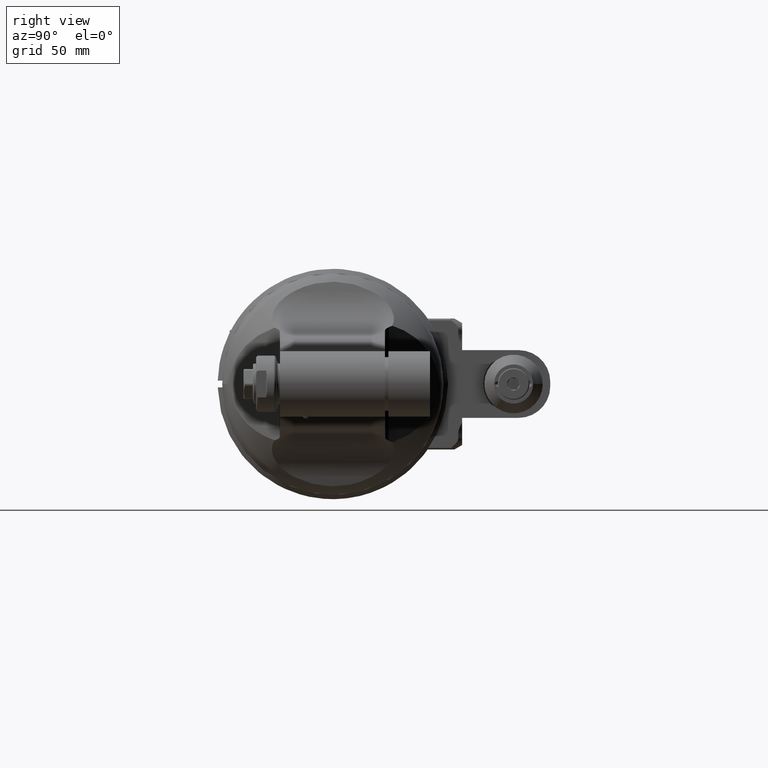
[diagram: clean part render]
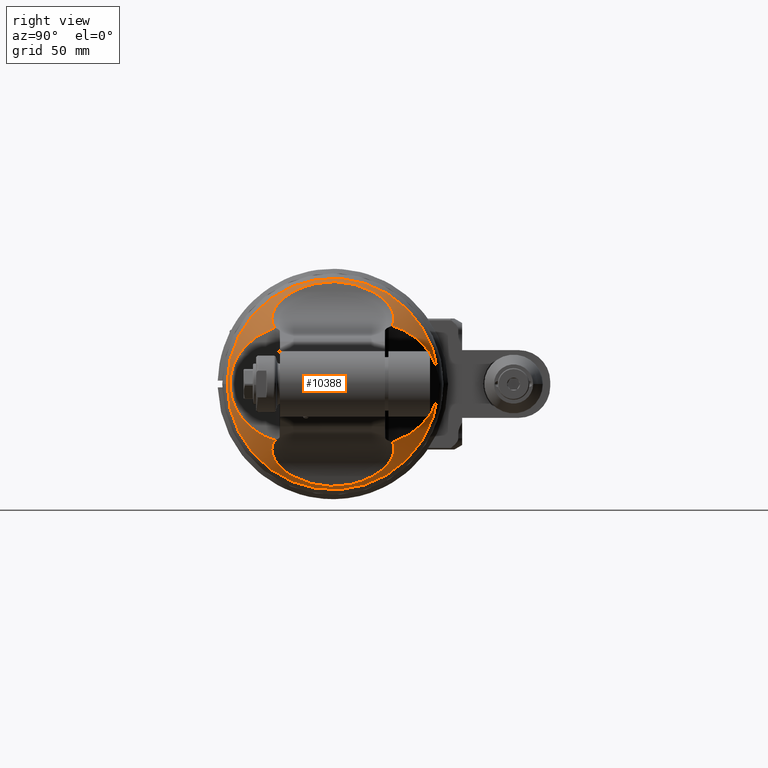
[diagram: same view with one face highlighted and labeled with its STEP entity id]
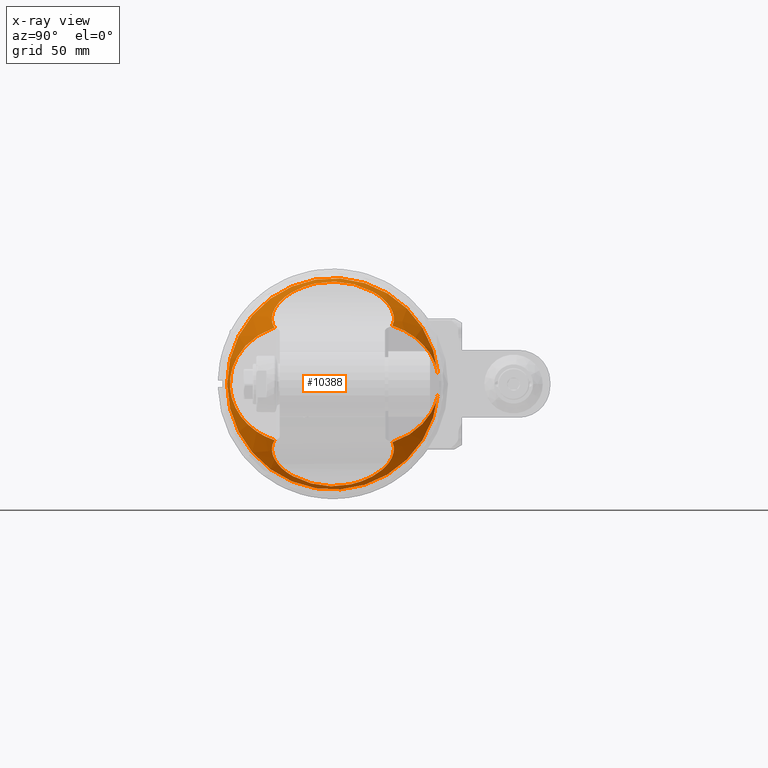
[diagram: x-ray of the same camera — body ghosted, the highlighted face saturated]
A machine part, right view. The second image highlights one B-rep face of the part: STEP entity #10388.
The next image is the same camera in x-ray: the body ghosted, the highlighted face saturated — about 0% of this face is hidden behind the body in this view.
In plain terms, the highlighted conical surface has half-angle 35 deg.
Its self-contained STEP definition (entity closure, byte-faithful):
#16=ELLIPSE('',#11337,38.5129525458926,27.495912521784);
#17=ELLIPSE('',#11338,38.5129525458926,27.495912521784);
#18=ELLIPSE('',#11342,39.5168570021427,37.4925114331019);
#19=ELLIPSE('',#11343,37.3310363154756,26.6520960099003);
#20=ELLIPSE('',#11344,39.5168570021427,37.4925114331019);
#673=CONICAL_SURFACE('',#11339,41.34548221376,0.610865238198015);
#1067=FACE_OUTER_BOUND('',#1672,.T.);
#1672=EDGE_LOOP('',(#8582,#8583,#8584,#8585,#8586,#8587,#8588,#8589,#8590,
#8591,#8592));
#2198=CIRCLE('',#11340,46.82982453147);
#2199=CIRCLE('',#11341,46.82982453147);
#2469=B_SPLINE_CURVE_WITH_KNOTS('',3,(#58747,#58748,#58749,#58750,#58751,
#58752,#58753,#58754,#58755,#58756,#58757,#58758,#58759,#58760,#58761,#58762),
 .UNSPECIFIED.,.F.,.F.,(4,2,2,2,2,2,2,4),(-11.3679576426964,-11.1087200709386,
-10.8090962085518,-10.509472346165,-10.1518591663311,-9.79424598649715,
-9.20006866240719,-9.17254142138074),.UNSPECIFIED.);
#2470=B_SPLINE_CURVE_WITH_KNOTS('',3,(#58766,#58767,#58768,#58769,#58770,
#58771,#58772,#58773,#58774,#58775,#58776,#58777,#58778,#58779,#58780,#58781),
 .UNSPECIFIED.,.F.,.F.,(4,2,2,2,2,2,2,4),(-5.66253195905696,-5.63500471786744,
-5.04082739377748,-4.68321421394354,-4.3256010341096,-4.02597717172281,
-3.72635330933601,-3.29785451749121),.UNSPECIFIED.);
#2473=B_SPLINE_CURVE_WITH_KNOTS('',3,(#58869,#58870,#58871,#58872,#58873,
#58874,#58875,#58876,#58877,#58878,#58879,#58880,#58881,#58882,#58883,#58884),
 .UNSPECIFIED.,.F.,.F.,(4,2,2,2,2,2,2,4),(-4.1196821726461,-3.6911833808013,
-3.39155951841451,-3.09193565602771,-2.73432247619377,-2.37670929635983,
-1.78253197226987,-1.7550047310812),.UNSPECIFIED.);
#2474=B_SPLINE_CURVE_WITH_KNOTS('',3,(#58888,#58889,#58890,#58891,#58892,
#58893,#58894,#58895,#58896,#58897,#58898,#58899,#58900,#58901,#58902,#58903),
 .UNSPECIFIED.,.F.,.F.,(4,2,2,2,2,2,2,4),(1.75500473105324,1.78253197226987,
2.37670929635983,2.73432247619377,3.09193565602771,3.39155951841451,3.6911833808013,
3.95042095255802),.UNSPECIFIED.);
#4733=VERTEX_POINT('',#58744);
#4734=VERTEX_POINT('',#58746);
#4735=VERTEX_POINT('',#58763);
#4736=VERTEX_POINT('',#58765);
#4760=VERTEX_POINT('',#58866);
#4761=VERTEX_POINT('',#58868);
#4762=VERTEX_POINT('',#58885);
#4763=VERTEX_POINT('',#58887);
#4764=VERTEX_POINT('',#58906);
#4765=VERTEX_POINT('',#58908);
#4766=VERTEX_POINT('',#58921);
#6120=EDGE_CURVE('',#4733,#4734,#2469,.T.);
#6122=EDGE_CURVE('',#4735,#4736,#2470,.T.);
#6159=EDGE_CURVE('',#4760,#4761,#2473,.T.);
#6161=EDGE_CURVE('',#4762,#4763,#2474,.T.);
#6163=EDGE_CURVE('',#4764,#4733,#16,.T.);
#6164=EDGE_CURVE('',#4763,#4765,#17,.T.);
#6166=EDGE_CURVE('',#4766,#4764,#2198,.T.);
#6167=EDGE_CURVE('',#4765,#4766,#2199,.T.);
#6168=EDGE_CURVE('',#4761,#4762,#18,.T.);
#6169=EDGE_CURVE('',#4736,#4760,#19,.T.);
#6170=EDGE_CURVE('',#4734,#4735,#20,.T.);
#8582=ORIENTED_EDGE('',*,*,#6163,.F.);
#8583=ORIENTED_EDGE('',*,*,#6166,.F.);
#8584=ORIENTED_EDGE('',*,*,#6167,.F.);
#8585=ORIENTED_EDGE('',*,*,#6164,.F.);
#8586=ORIENTED_EDGE('',*,*,#6161,.F.);
#8587=ORIENTED_EDGE('',*,*,#6168,.F.);
#8588=ORIENTED_EDGE('',*,*,#6159,.F.);
#8589=ORIENTED_EDGE('',*,*,#6169,.F.);
#8590=ORIENTED_EDGE('',*,*,#6122,.F.);
#8591=ORIENTED_EDGE('',*,*,#6170,.F.);
#8592=ORIENTED_EDGE('',*,*,#6120,.F.);
#10388=ADVANCED_FACE('',(#1067),#673,.T.);
#11337=AXIS2_PLACEMENT_3D('',#58907,#13408,#13409);
#11338=AXIS2_PLACEMENT_3D('',#58909,#13410,#13411);
#11339=AXIS2_PLACEMENT_3D('',#58920,#13412,#13413);
#11340=AXIS2_PLACEMENT_3D('',#58922,#13414,#13415);
#11341=AXIS2_PLACEMENT_3D('',#58923,#13416,#13417);
#11342=AXIS2_PLACEMENT_3D('',#58924,#13418,#13419);
#11343=AXIS2_PLACEMENT_3D('',#58925,#13420,#13421);
#11344=AXIS2_PLACEMENT_3D('',#58926,#13422,#13423);
#13408=DIRECTION('center_axis',(0.819152044289016,0.573576436351011,0.));
#13409=DIRECTION('ref_axis',(-0.573576436351011,0.819152044289016,4.61236213267087E-16));
#13410=DIRECTION('center_axis',(0.819152044289016,0.573576436351011,0.));
#13411=DIRECTION('ref_axis',(-0.573576436351011,0.819152044289016,4.61236213267087E-16));
#13412=DIRECTION('center_axis',(-1.,0.,0.));
#13413=DIRECTION('ref_axis',(0.,-1.,7.63955905622022E-13));
#13414=DIRECTION('center_axis',(-1.,0.,0.));
#13415=DIRECTION('ref_axis',(0.,0.9958750951069,-0.09073475048637));
#13416=DIRECTION('center_axis',(-1.,0.,0.));
#13417=DIRECTION('ref_axis',(0.,0.9958750951069,-0.09073475048637));
#13418=DIRECTION('center_axis',(0.965925826289076,0.,-0.258819045102493));
#13419=DIRECTION('ref_axis',(-0.258819045102494,-2.84553889323999E-15,-0.965925826289076));
#13420=DIRECTION('center_axis',(0.819152044289016,-0.573576436351011,0.));
#13421=DIRECTION('ref_axis',(-0.573576436351011,-0.819152044289016,-3.568793585829E-16));
#13422=DIRECTION('center_axis',(0.965925826289076,0.,0.258819045102493));
#13423=DIRECTION('ref_axis',(0.258819045102494,-1.92035758627816E-14,-0.965925826289076));
#58744=CARTESIAN_POINT('',(50.32663557925,26.31796038215,25.81853261668));
#58746=CARTESIAN_POINT('',(39.43907326344,17.62419830655,40.85173814823));
#58747=CARTESIAN_POINT('Ctrl Pts',(50.3266355792508,26.3179603821482,25.8185326166821));
#58748=CARTESIAN_POINT('Ctrl Pts',(49.5931269071222,26.5670459568276,26.2980394523377));
#58749=CARTESIAN_POINT('Ctrl Pts',(48.8652262292801,26.7602403925626,26.8275770681717));
#58750=CARTESIAN_POINT('Ctrl Pts',(47.3527718095707,27.0206715689457,28.055709602424));
#58751=CARTESIAN_POINT('Ctrl Pts',(46.5754988807068,27.0631655307251,28.769610398774));
#58752=CARTESIAN_POINT('Ctrl Pts',(45.1408364903172,26.928828024518,30.2539541892921));
#58753=CARTESIAN_POINT('Ctrl Pts',(44.4833891250785,26.7515201873074,31.0242980645363));
#58754=CARTESIAN_POINT('Ctrl Pts',(43.2048615199485,26.1431500897146,32.6960679135348));
#58755=CARTESIAN_POINT('Ctrl Pts',(42.546578790386,25.6262824137681,33.6912935538658));
#58756=CARTESIAN_POINT('Ctrl Pts',(41.4504452654249,24.2857621006101,35.6027586369876));
#58757=CARTESIAN_POINT('Ctrl Pts',(41.0087793176665,23.4640109036862,36.5181412902263));
#58758=CARTESIAN_POINT('Ctrl Pts',(40.1128481386325,21.2432134325854,38.5992416820879));
#58759=CARTESIAN_POINT('Ctrl Pts',(39.7430630256033,19.6305258381362,39.7397040921012));
#58760=CARTESIAN_POINT('Ctrl Pts',(39.4631801555046,17.7882881650128,40.762244558247));
#58761=CARTESIAN_POINT('Ctrl Pts',(39.4510158799108,17.7063995071778,40.8071676968061));
#58762=CARTESIAN_POINT('Ctrl Pts',(39.4390732634466,17.6241983065466,40.8517381482256));
#58763=CARTESIAN_POINT('',(39.43907326322,-17.6241983051,40.85173814904));
#58765=CARTESIAN_POINT('',(51.76423686831,-25.76485296668,24.94381098088));
#58766=CARTESIAN_POINT('Ctrl Pts',(39.4390732632344,-17.6241983050858,40.8517381490176));
#58767=CARTESIAN_POINT('Ctrl Pts',(39.4510158797666,-17.7063995062076,40.8071676973384));
#58768=CARTESIAN_POINT('Ctrl Pts',(39.4631801554312,-17.7882881645296,40.7622445585152));
#58769=CARTESIAN_POINT('Ctrl Pts',(39.7430630256034,-19.6305258381362,39.7397040921012));
#58770=CARTESIAN_POINT('Ctrl Pts',(40.1128481386325,-21.2432134325854,38.5992416820879));
#58771=CARTESIAN_POINT('Ctrl Pts',(41.0087793176665,-23.4640109036862,36.5181412902263));
#58772=CARTESIAN_POINT('Ctrl Pts',(41.4504452654249,-24.2857621006101,35.6027586369876));
#58773=CARTESIAN_POINT('Ctrl Pts',(42.546578790386,-25.6262824137681,33.6912935538658));
#58774=CARTESIAN_POINT('Ctrl Pts',(43.2048615199485,-26.1431500897146,32.6960679135348));
#58775=CARTESIAN_POINT('Ctrl Pts',(44.4833891250785,-26.7515201873074,31.0242980645363));
#58776=CARTESIAN_POINT('Ctrl Pts',(45.1408364903172,-26.928828024518,30.2539541892921));
#58777=CARTESIAN_POINT('Ctrl Pts',(46.5754988807068,-27.0631655307252,28.769610398774));
#58778=CARTESIAN_POINT('Ctrl Pts',(47.3527718095707,-27.0206715689457,28.055709602424));
#58779=CARTESIAN_POINT('Ctrl Pts',(49.3233002074889,-26.6813641345671,26.4556150781762));
#58780=CARTESIAN_POINT('Ctrl Pts',(50.5563175668249,-26.2814142669372,25.6262254767731));
#58781=CARTESIAN_POINT('Ctrl Pts',(51.7642368683103,-25.764852966678,24.943810980882));
#58866=CARTESIAN_POINT('',(51.76423686831,-25.76485296668,-24.94381098088));
#58868=CARTESIAN_POINT('',(39.43907326322,-17.62419830511,-40.85173814904));
#58869=CARTESIAN_POINT('Ctrl Pts',(51.7642368683103,-25.764852966678,-24.943810980882));
#58870=CARTESIAN_POINT('Ctrl Pts',(50.5563175668249,-26.2814142669372,-25.6262254767731));
#58871=CARTESIAN_POINT('Ctrl Pts',(49.3233002074889,-26.6813641345671,-26.4556150781762));
#58872=CARTESIAN_POINT('Ctrl Pts',(47.3527718095707,-27.0206715689457,-28.055709602424));
#58873=CARTESIAN_POINT('Ctrl Pts',(46.5754988807068,-27.0631655307252,-28.769610398774));
#58874=CARTESIAN_POINT('Ctrl Pts',(45.1408364903172,-26.928828024518,-30.2539541892921));
#58875=CARTESIAN_POINT('Ctrl Pts',(44.4833891250785,-26.7515201873074,-31.0242980645363));
#58876=CARTESIAN_POINT('Ctrl Pts',(43.2048615199485,-26.1431500897146,-32.6960679135348));
#58877=CARTESIAN_POINT('Ctrl Pts',(42.546578790386,-25.6262824137681,-33.6912935538658));
#58878=CARTESIAN_POINT('Ctrl Pts',(41.4504452654249,-24.2857621006101,-35.6027586369876));
#58879=CARTESIAN_POINT('Ctrl Pts',(41.0087793176665,-23.4640109036862,-36.5181412902263));
#58880=CARTESIAN_POINT('Ctrl Pts',(40.1128481386325,-21.2432134325854,-38.5992416820879));
#58881=CARTESIAN_POINT('Ctrl Pts',(39.7430630256033,-19.6305258381362,-39.7397040921012));
#58882=CARTESIAN_POINT('Ctrl Pts',(39.4631801554316,-17.7882881645321,-40.7622445585138));
#58883=CARTESIAN_POINT('Ctrl Pts',(39.4510158797674,-17.7063995062127,-40.8071676973356));
#58884=CARTESIAN_POINT('Ctrl Pts',(39.4390732632355,-17.6241983050934,-40.8517381490135));
#58885=CARTESIAN_POINT('',(39.43907326313,17.62419830494,-40.85173814931));
#58887=CARTESIAN_POINT('',(50.32663557924,26.31796038216,-25.81853261668));
#58888=CARTESIAN_POINT('Ctrl Pts',(39.4390732631991,17.6241983048429,-40.8517381491494));
#58889=CARTESIAN_POINT('Ctrl Pts',(39.4510158797427,17.7063995060463,-40.8071676974269));
#58890=CARTESIAN_POINT('Ctrl Pts',(39.463180155419,17.7882881644492,-40.7622445585598));
#58891=CARTESIAN_POINT('Ctrl Pts',(39.7430630256033,19.6305258381362,-39.7397040921012));
#58892=CARTESIAN_POINT('Ctrl Pts',(40.1128481386325,21.2432134325854,-38.5992416820879));
#58893=CARTESIAN_POINT('Ctrl Pts',(41.0087793176665,23.4640109036862,-36.5181412902263));
#58894=CARTESIAN_POINT('Ctrl Pts',(41.4504452654249,24.2857621006101,-35.6027586369876));
#58895=CARTESIAN_POINT('Ctrl Pts',(42.546578790386,25.6262824137681,-33.6912935538658));
#58896=CARTESIAN_POINT('Ctrl Pts',(43.2048615199485,26.1431500897146,-32.6960679135348));
#58897=CARTESIAN_POINT('Ctrl Pts',(44.4833891250785,26.7515201873074,-31.0242980645363));
#58898=CARTESIAN_POINT('Ctrl Pts',(45.1408364903172,26.928828024518,-30.2539541892921));
#58899=CARTESIAN_POINT('Ctrl Pts',(46.5754988807068,27.0631655307251,-28.769610398774));
#58900=CARTESIAN_POINT('Ctrl Pts',(47.3527718095707,27.0206715689457,-28.055709602424));
#58901=CARTESIAN_POINT('Ctrl Pts',(48.8652262292773,26.7602403925631,-26.827577068174));
#58902=CARTESIAN_POINT('Ctrl Pts',(49.5931269071164,26.5670459568292,-26.2980394523418));
#58903=CARTESIAN_POINT('Ctrl Pts',(50.3266355792421,26.3179603821512,-25.8185326166878));
#58906=CARTESIAN_POINT('',(36.09933176966,46.63665595912,4.249092444111));
#58907=CARTESIAN_POINT('Origin',(57.9240906989478,15.4676699966277,0.));
#58908=CARTESIAN_POINT('',(36.09933176966,46.63665595912,-4.249092444183));
#58909=CARTESIAN_POINT('Origin',(57.9240906989478,15.4676699966277,0.));
#58920=CARTESIAN_POINT('Origin',(43.93178431899,0.,0.));
#58921=CARTESIAN_POINT('',(36.09933176966,-46.82982453147,5.73499947170969E-15));
#58922=CARTESIAN_POINT('Origin',(36.09933176966,0.,0.));
#58923=CARTESIAN_POINT('Origin',(36.09933176966,0.,0.));
#58924=CARTESIAN_POINT('Origin',(48.466339130748,0.,-7.16152327802339));
#58925=CARTESIAN_POINT('Origin',(59.3067794640528,-14.9929857928144,1.33226762955019E-14));
#58926=CARTESIAN_POINT('Origin',(48.466339130748,-1.33226762955019E-14,
7.1615232780234));